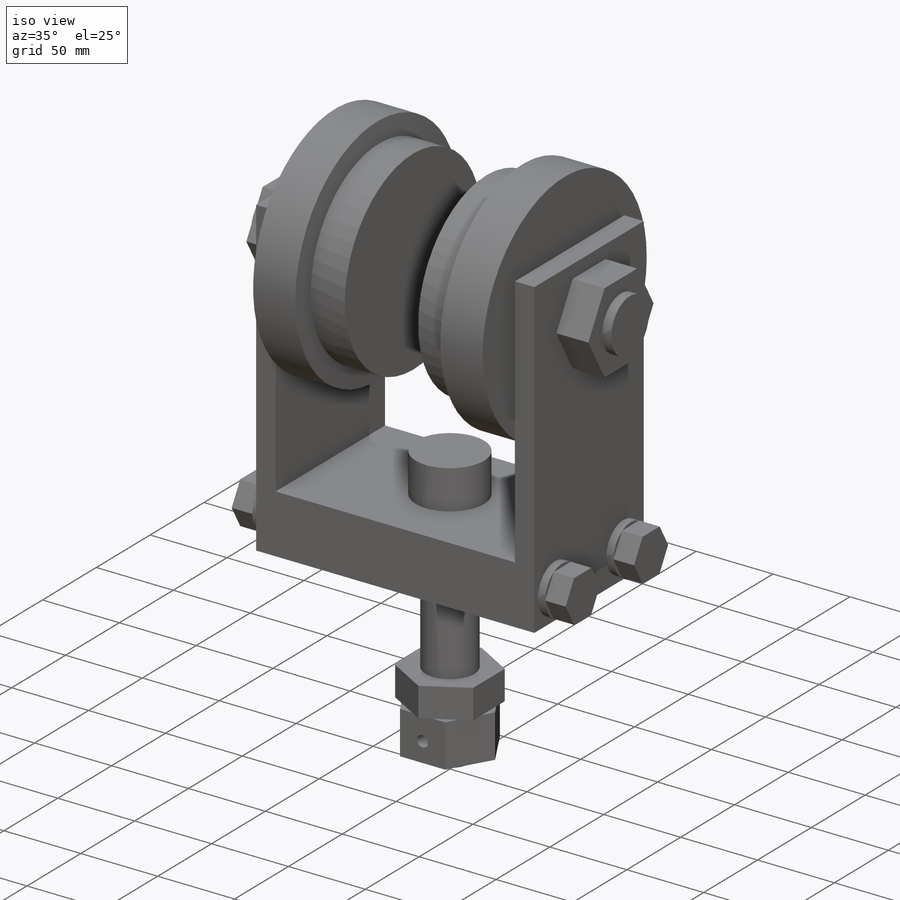
[diagram: iso view]
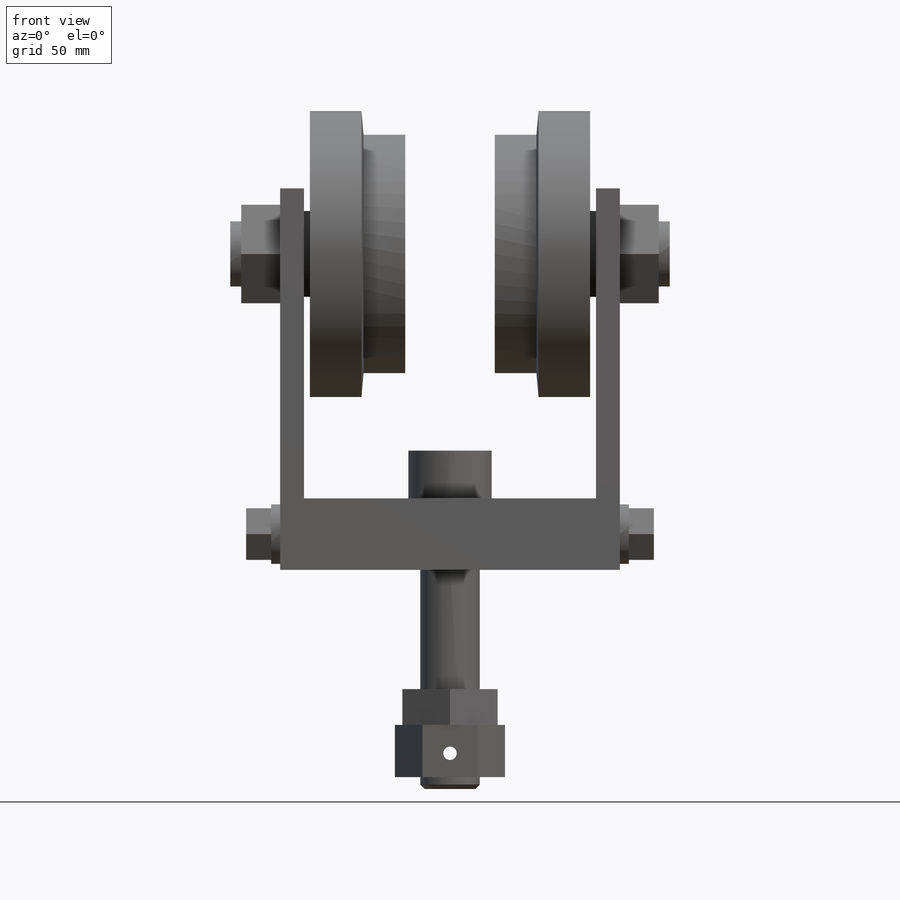
[diagram: front view]
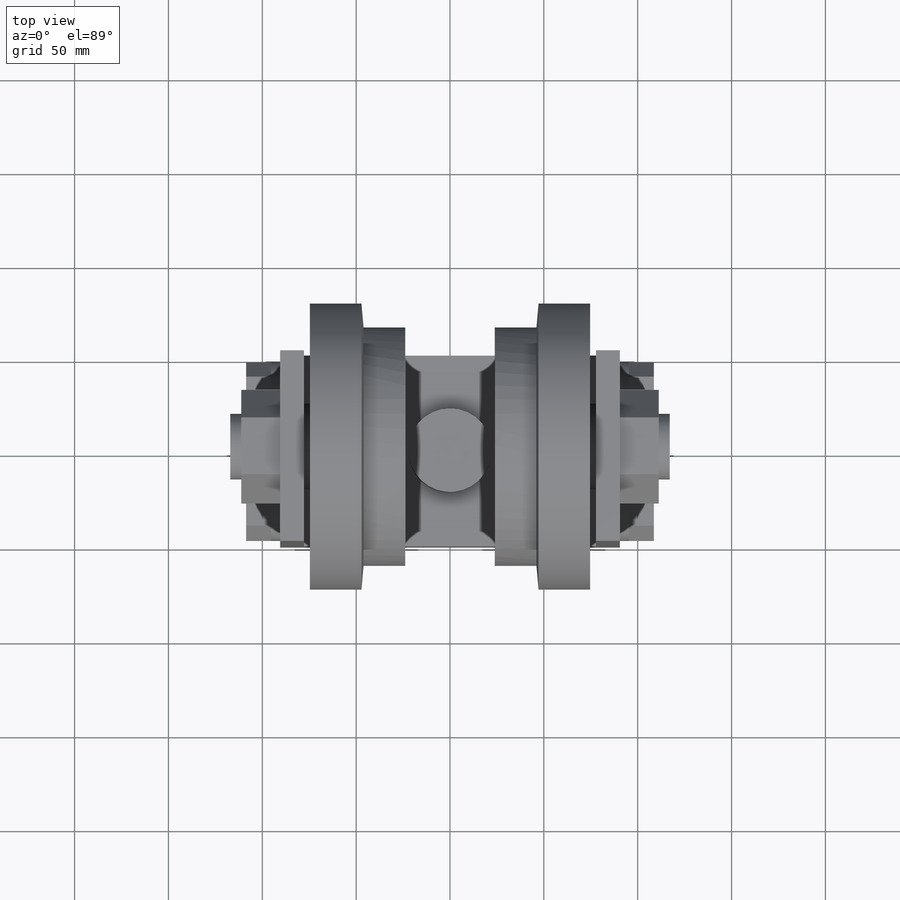
[diagram: top view]
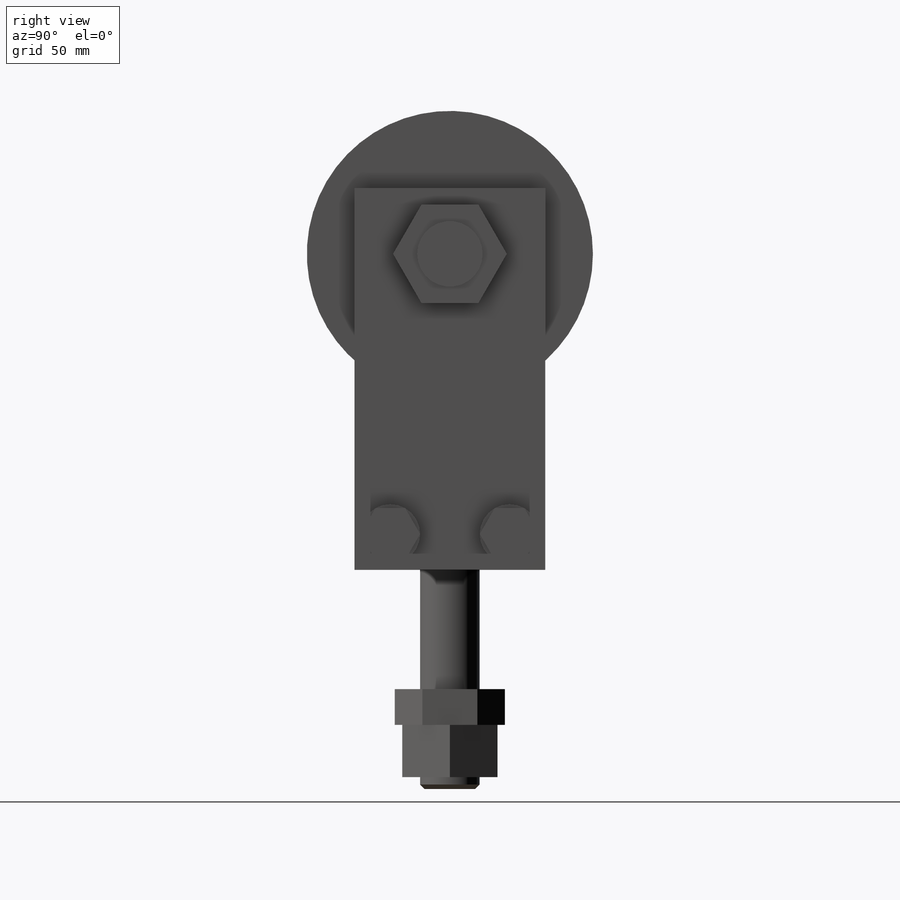
[diagram: right view]
SOLIDWORKS PART (.sldprt)
format: sldprt  version: not decoded by parser v0  size: 1,049,600 bytes
history: native  units: mm
features: sketch x14, extrude x12, plane x10, mirror x3, material x1, chamfer x1, revolve x1, cut_extrude x1 (+11 scaffold rows collapsed)
feature tree (54):
  scaffold x11  (default folders/planes/origin — collapsed)
  material  "Material <not specified>"
  plane  "Z PLANE"  Offset=0mm
  plane  "YOKE BOTTOM"  Offset=0mm
  plane  "X PLANE"  Offset=0mm
  sketch  "YOKE CROSS SECTION"  dims[D1=38.1mm D2=101.6mm]
  plane  "1/2 YOKE LENGTH (A)"  Offset=77.7875mm
  extrude  "YOKE"  [1 undecoded]
  sketch  "SIDEPLATE PROFILE"  dims[D1=203.2mm]
  plane  "WHEEL HEIGHT"  Offset=168.275mm
  plane  "SCREW LOCATION X"  Offset=31.75mm
  plane  "SCREW LOCATION Y"  Offset=19.05mm
  extrude  "SIDEPLATE"  Depth=12.7mm
  sketch  "WHEEL PIN NUT PROFILE"  dims[D1=~52.48402mm]
  extrude  "WHEEL PIN NUT"  Depth=20.70608mm
  sketch  "WHEEL PIN PROJECTION PROFILE"  dims[D1=34.925mm]
  extrude  "WHEEL PIN PROJECTION"  Depth=5.88264mm
  sketch  "LOCKNUTS PROFILE"  dims[D1=31.75mm]
  extrude  "LOCKNUTS"  Depth=4.7625mm
  sketch  "SCREWS PROFILE"  dims[D1=27.4955mm]
  extrude  "SCREWS"  Depth=13.3223mm
  sketch  "PROFILE"  dims[D1=44.45mm]
  extrude  "KING BOLT HEAD"  Depth=25.4mm
  mirror  "Mirror1"
  mirror  "Mirror5"
  plane  "TOP OF NUT"  Offset=63.5mm
  sketch  "DIA."  dims[D1=31.75mm]
  extrude  "KING BOLT"  [1 undecoded]
  sketch  "KING BOLT JAN NUT PROFILE"  dims[D1=50.8mm]
  extrude  "KING BOLT JAM NUT"  Depth=19.0754mm
  sketch  "KING BOLT NUT PROFILE"  dims[c1.D1=50.8mm c1.D2=44.45mm c2.D1=0.0mm]
  extrude  "KING BOLT NUT"  Depth=27.8003mm
  sketch  "Sketch5"
  extrude  "EXTENDED KING BOLT"  Depth=6.35mm
  chamfer  "Chamfer1"  Distance=2.38125mm Angle=45deg
  plane  "MOUNTING REF PLANE"  Offset=34.925mm
  sketch  "Sketch6"  dims[c1.D2=88.9mm c1.D1=3.175mm c2.D2=~14.090131mm c2.D3=15.875mm c2.D4=53.975mm c2.D5=53.975mm c2.D1=3.175mm c3.D2=3.175mm c3.D3=~18.850641mm c3.D4=15.875mm c3.D5=25.4mm c3.D6=~82.749359mm c3.D7=~61.471212mm c3.D8=~14.090131mm c3.D9=15.875mm c3.D1=~22.864897mm c4.D1=270.0deg c5.D1=3.175mm c5.D2=30.6324mm c5.D3=31.75mm c5.D4=53.975mm c5.D5=~22.864897mm c5.D6=76.2mm c5.D7=63.5mm]
  revolve  "WHEEL"  Angle=360deg
  mirror  "Mirror6"
  sketch  "Sketch7"  dims[D1=~7.14375mm D2=12.7mm]
  cut_extrude  "COTTER PIN HOLE"  [1 undecoded]
  sketch  "Sketch8"  dims[D1=50.8mm D2=60.325mm]
  extrude  "SPACER"  Depth=12.7mm
  plane  "TREAD OF TRACK"  Offset=104.775mm
decode coverage: 25 of 32 modeling features carry decoded parameters
note: ~ marks probable driven/reference dimensions
note: 3 parameter values undecoded
summary: no parameter record found for 3 features
note: suppression state not decoded; provenance and decode notes live in map.json
